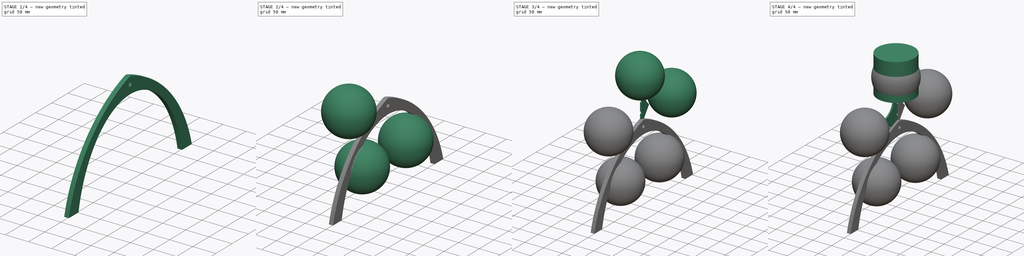
[diagram: build sequence overview — one tinted view per stage of 4, left to right]
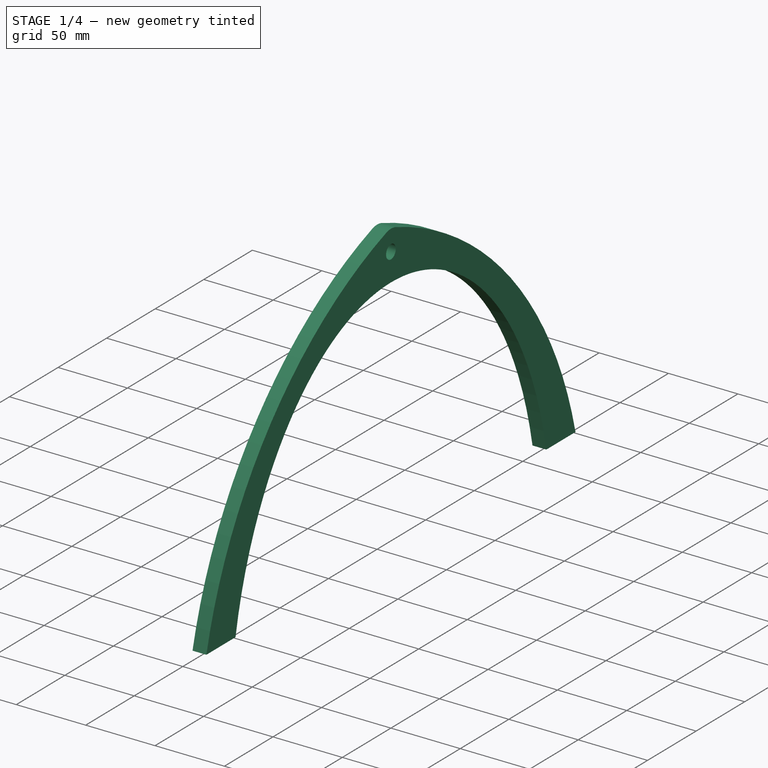
[diagram: stage 1 of 4 — iso view after this stage's code; geometry added in this stage tinted green]
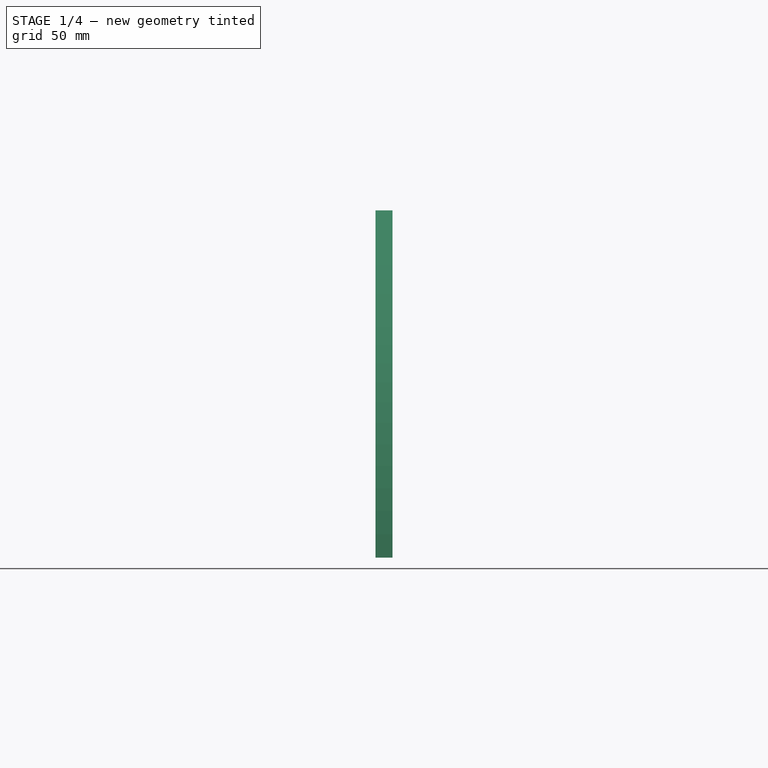
[diagram: stage 1 of 4 — front view after this stage's code; geometry added in this stage tinted green]
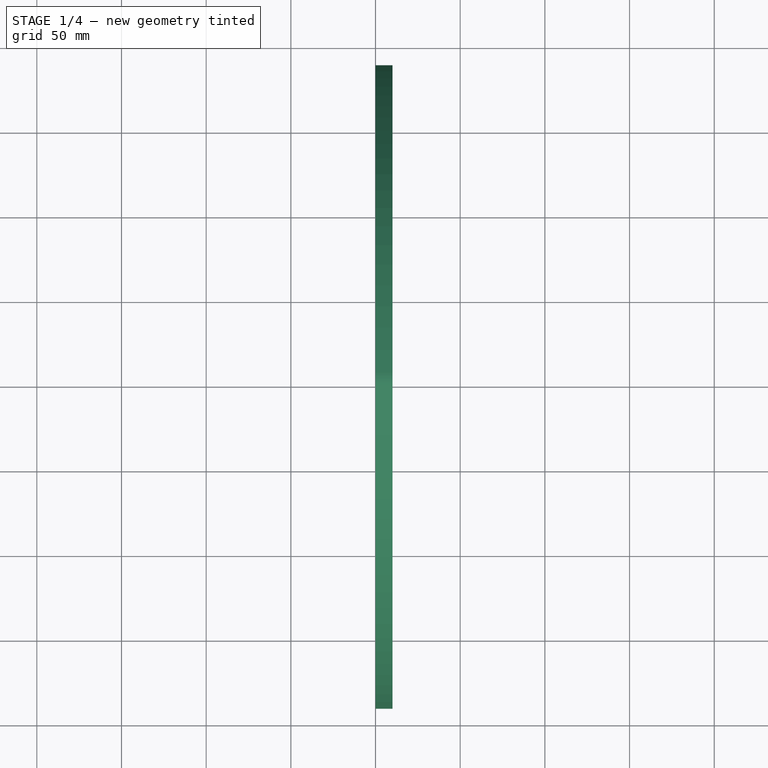
[diagram: stage 1 of 4 — top view after this stage's code; geometry added in this stage tinted green]
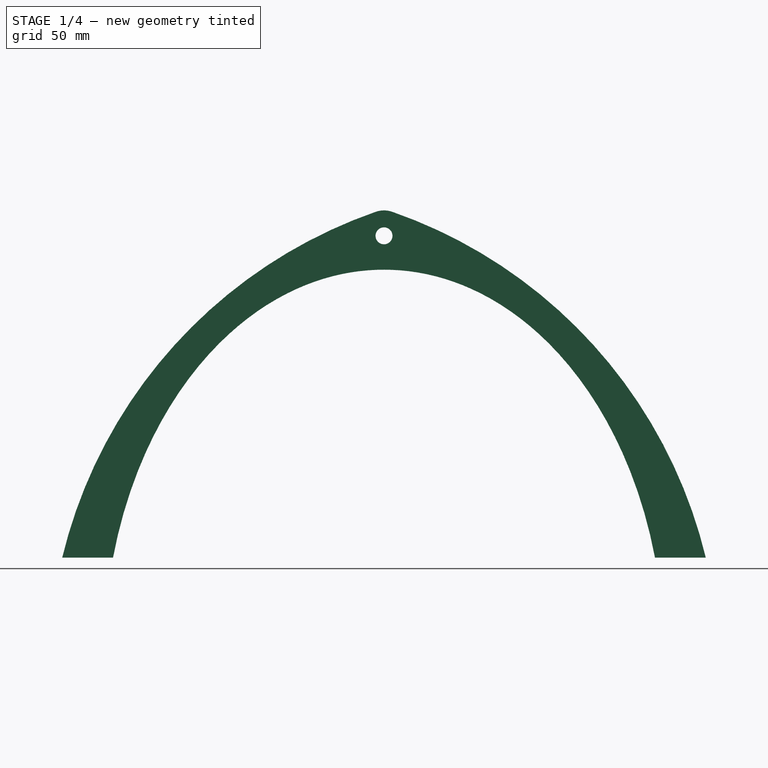
[diagram: stage 1 of 4 — right view after this stage's code; geometry added in this stage tinted green]
FCSTD DOCUMENT  (FreeCAD 0.19R24291 (Git))
Label: ferris wheel1
License: All rights reserved
LicenseURL: http://en.wikipedia.org/wiki/All_rights_reserved
objects: Part::Sphere×5, Sketcher::SketchObject×2, PartDesign::Pad×2, PartDesign::Mirrored×2, PartDesign::Body×2, Part::Cylinder×1, PartDesign::PolarPattern×1, PartDesign::MultiTransform×1
note: 18 computed .brp shape members not serialized (recipe doc carries the construction recipe); baked Part::Feature solids carry a one-line shape summary decoded from their .brp

FEATURE [PartDesign::Pad] Pad001
  Direction = (1,1,1)
  Length = 10
  Length2 = 100
  Placement = pos=(0,0,0) rot=(0.57735,0.57735,0.57735;2.0944rad)
  Profile = -> Sketch
  Type = 0
FEATURE [PartDesign::Mirrored] Mirrored001
  BaseFeature = -> Pad001
  MirrorPlane = -> Sketch [V_Axis]
  Originals = -> [Pad001]
  Placement = pos=(0,0,0) rot=(0.57735,0.57735,0.57735;2.0944rad)
FEATURE [PartDesign::Body] Body
  Group = -> [Sketch,Pad001,Mirrored001]
  Origin = -> Origin
  Placement = pos=(28,0,0) rot=(0,0,1;0rad)
  Tip = -> Mirrored001
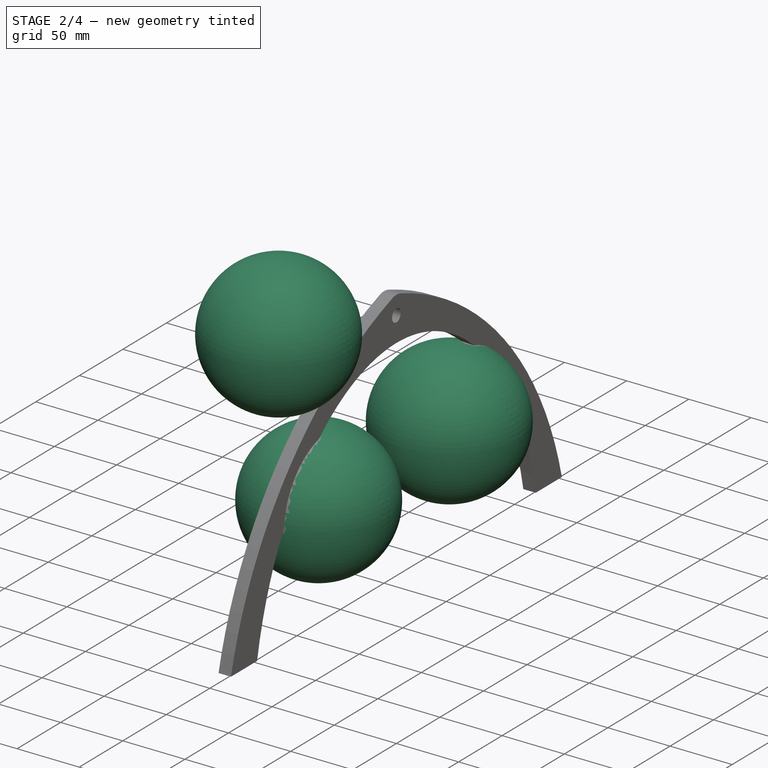
[diagram: stage 2 of 4 — iso view after this stage's code; geometry added in this stage tinted green]
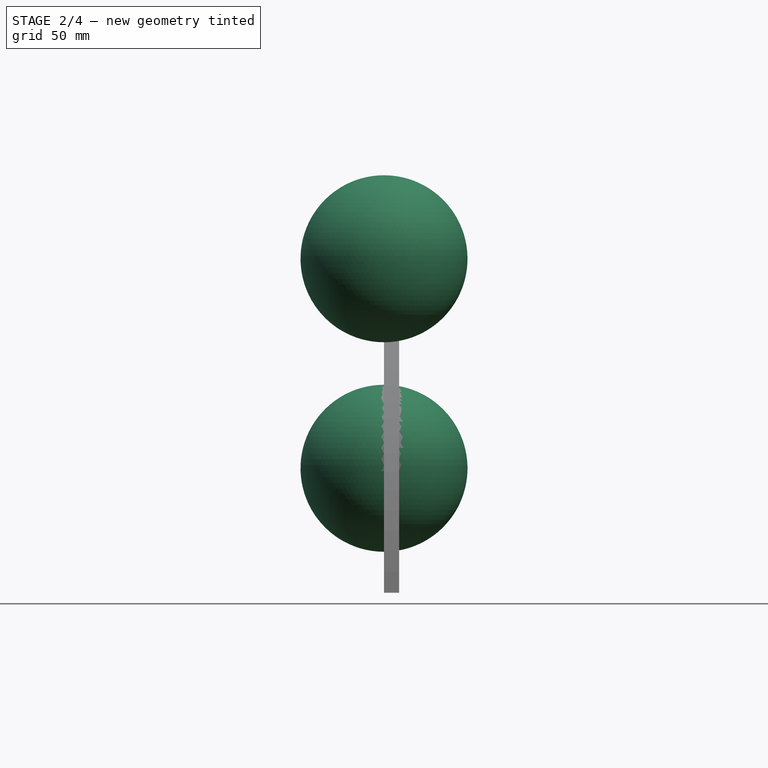
[diagram: stage 2 of 4 — front view after this stage's code; geometry added in this stage tinted green]
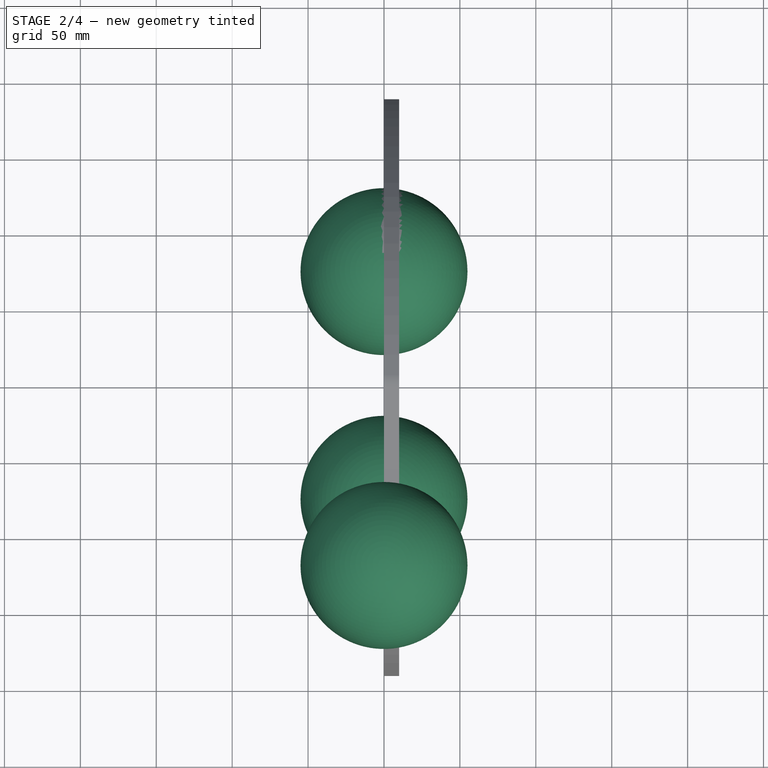
[diagram: stage 2 of 4 — top view after this stage's code; geometry added in this stage tinted green]
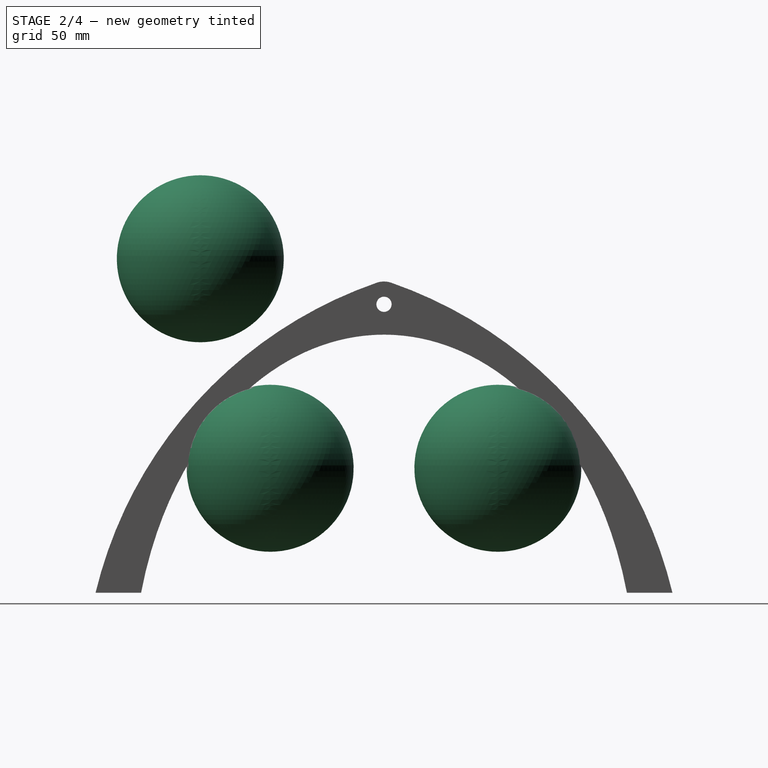
[diagram: stage 2 of 4 — right view after this stage's code; geometry added in this stage tinted green]
FEATURE [Part::Sphere] Sphere002
  Angle1 = -90
  Angle2 = 90
  Angle3 = 360
  AttacherType = Attacher::AttachEngine3D
  Placement = pos=(0,-121,30) rot=(0,0,1;0rad)
  Radius = 55
FEATURE [Part::Sphere] Sphere003
  Angle1 = -90
  Angle2 = 90
  Angle3 = 360
  AttacherType = Attacher::AttachEngine3D
  Placement = pos=(0,75,-108) rot=(0,0,1;0rad)
  Radius = 55
FEATURE [Part::Sphere] Sphere004
  Angle1 = -90
  Angle2 = 90
  Angle3 = 360
  AttacherType = Attacher::AttachEngine3D
  Placement = pos=(0,-75,-108) rot=(0,0,1;0rad)
  Radius = 55
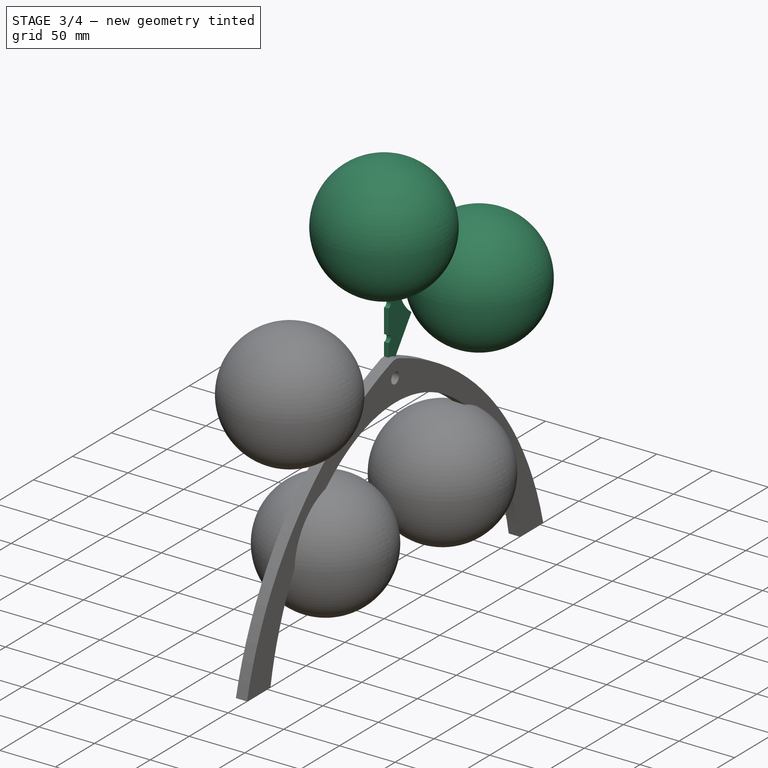
[diagram: stage 3 of 4 — iso view after this stage's code; geometry added in this stage tinted green]
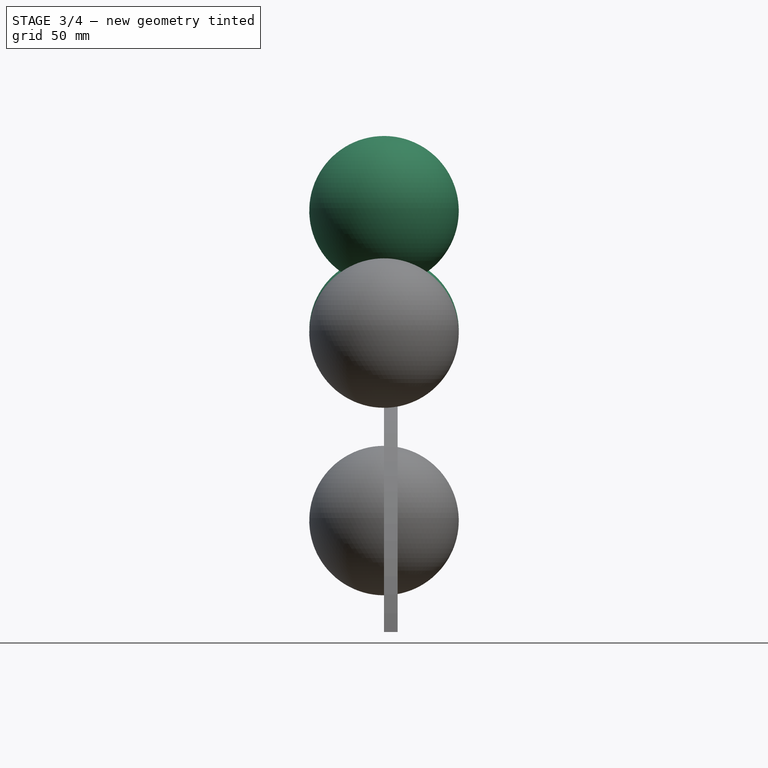
[diagram: stage 3 of 4 — front view after this stage's code; geometry added in this stage tinted green]
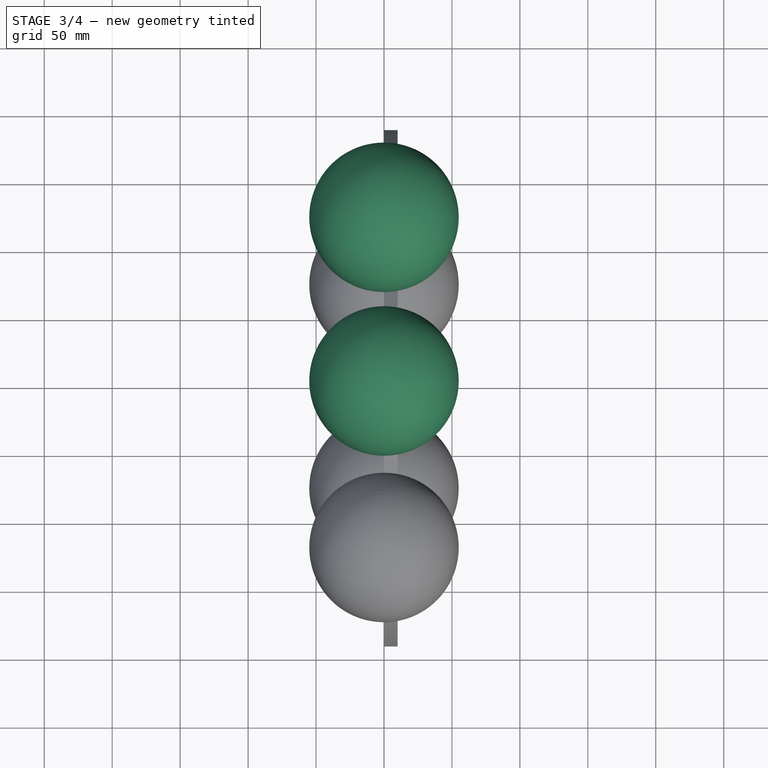
[diagram: stage 3 of 4 — top view after this stage's code; geometry added in this stage tinted green]
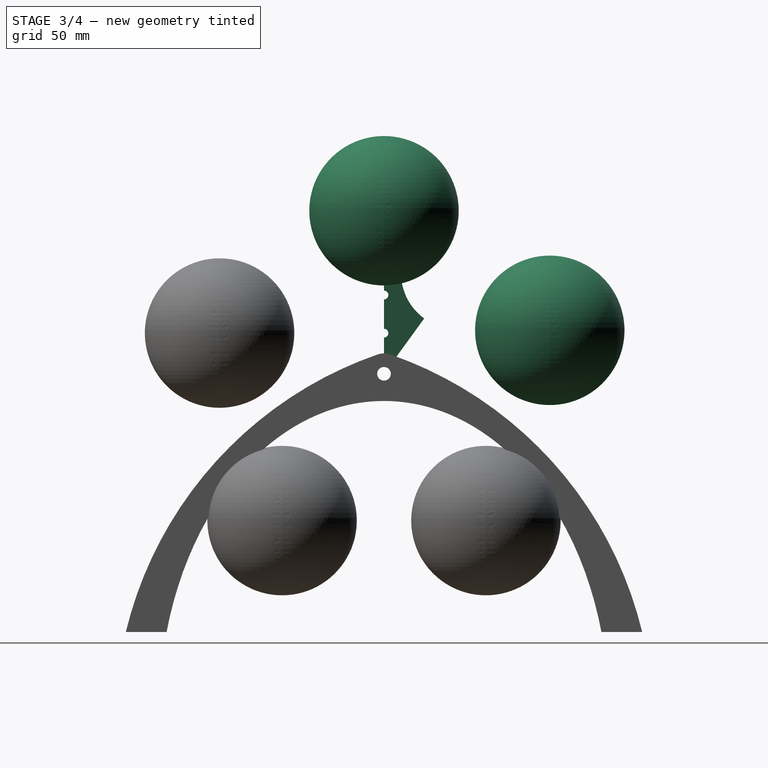
[diagram: stage 3 of 4 — right view after this stage's code; geometry added in this stage tinted green]
FEATURE [Sketcher::SketchObject] Sketch
  FullyConstrained = false
  MapMode = 5
  Placement = pos=(0,0,0) rot=(0.57735,0.57735,0.57735;2.0944rad)
  Support = -> [YZ_Plane]
  sketch-geometry (13):
    g0: ArcOfCircle CenterX=0 CenterY=0 CenterZ=0 NormalX=0 NormalY=0 NormalZ=1 AngleXU=0 Radius=5 StartAngle=4.71239 EndAngle=7.85398
    g1: ArcOfCircle CenterX=0 CenterY=0 CenterZ=0 NormalX=0 NormalY=0 NormalZ=1 AngleXU=0 Radius=15 StartAngle=1.2359 EndAngle=1.5708
    g2: LineSegment StartX=1.5e-15 StartY=15 StartZ=0 EndX=1.5e-15 EndY=5 EndZ=0
    g3: LineSegment StartX=-9e-16 StartY=-5 StartZ=0 EndX=-9e-16 EndY=-20 EndZ=0
    g4: LineSegment StartX=160 StartY=-190 StartZ=0 EndX=190 EndY=-190 EndZ=0
    g5: ArcOfCircle CenterX=-89.6084 CenterY=-257.492 CenterZ=0 NormalX=0 NormalY=0 NormalZ=1 AngleXU=0 Radius=287.639 StartAngle=0.23685 EndAngle=1.2359
    g6: GeomPoint X=160 Y=-190 Z=0
    g7: ArcOfEllipse CenterX=0 CenterY=-247.154 CenterZ=0 NormalX=0 NormalY=0 NormalZ=1 MajorRadius=227.154 MinorRadius=165.318 AngleXU=-1.5708 StartAngle=1.82514 EndAngle=3.14159
    g8: LineSegment StartX=-1.57e-14 StartY=-474.308 StartZ=0 EndX=1.57e-14 EndY=-20 EndZ=0
    g9: LineSegment StartX=165.318 StartY=-247.154 StartZ=0 EndX=-165.318 EndY=-247.154 EndZ=0
    g10: GeomPoint X=-3.46e-14 Y=-402.939 Z=0
    g11: GeomPoint X=1.07e-14 Y=-91.3697 Z=0
    g12: GeomPoint X=0 Y=-20 Z=0
  constraints (28):
    c: Coincident(g0,g-1)
    c: Coincident(g1,g0)
    c: PointOnObject(g1,g-2)
    c: Coincident(g2,g1)
    c: Vertical(g2)
    c: PointOnObject(g3,g-2)
    c: Vertical(g3)
    c: Coincident(g0,g3)
    c: Coincident(g0,g2)
    c: Horizontal(g4)
    c: Coincident(g5,g1)
    c: Coincident(g5,g4)
    c: PointOnObject(g6,g4)
    c: Diameter(g1) = 30
    c: Distance(g3,g0) = 20
    c: Distance(g4) = 30
    c: Diameter(g0) = 10
    c: DistanceX(g4) = 160
    c: DistanceY(g4) = -190
    c: InternalAlignment(g8-g11 -> g7) x4
    c: PointOnObject(g7,g-2)
    c: Coincident(g7,g4)
    c: Coincident(g7,g3)
    c: PointOnObject(g12,g7)
    c: PointOnObject(g12,g3)
    c: Perpendicular(g7,g3,g12) = 1.5708
    c: Tangent(g5,g1)
    c: Distance(g1,g1) = 5
FEATURE [Sketcher::SketchObject] Sketch001
  FullyConstrained = false
  MapMode = 5
  Placement = pos=(0,0,0) rot=(0.57735,0.57735,0.57735;2.0944rad)
  Support = -> [YZ_Plane001]
  sketch-geometry (12):
    g0: LineSegment StartX=2.93893 StartY=4.04508 StartZ=0 EndX=29.5954 EndY=40.7346 EndZ=0
    g1: LineSegment StartX=0 StartY=5 StartZ=0 EndX=0 EndY=26.7 EndZ=0
    g2: ArcOfCircle CenterX=0 CenterY=58 CenterZ=0 NormalX=0 NormalY=0 NormalZ=1 AngleXU=0 Radius=3.2 StartAngle=4.71239 EndAngle=7.85398
    g3: ArcOfCircle CenterX=0 CenterY=128 CenterZ=0 NormalX=0 NormalY=0 NormalZ=1 AngleXU=0 Radius=2.7 StartAngle=4.71239 EndAngle=7.85398
    g4: ArcOfCircle CenterX=0 CenterY=128 CenterZ=0 NormalX=0 NormalY=0 NormalZ=1 AngleXU=0 Radius=12.5 StartAngle=2.07207e-06 EndAngle=1.5708
    g5: LineSegment StartX=12.5 StartY=128 StartZ=0 EndX=12.5 EndY=74.2862 EndZ=0
    g6: ArcOfCircle CenterX=53.9721 CenterY=74.2862 CenterZ=0 NormalX=0 NormalY=0 NormalZ=1 AngleXU=0 Radius=41.4721 StartAngle=3.14159 EndAngle=4.08407
    g7: LineSegment StartX=1e-15 StartY=61.2 StartZ=0 EndX=-5e-16 EndY=125.3 EndZ=0
    g8: LineSegment StartX=8e-16 StartY=130.7 StartZ=0 EndX=0 EndY=140.5 EndZ=0
    g9: ArcOfCircle CenterX=0 CenterY=0 CenterZ=0 NormalX=0 NormalY=0 NormalZ=1 AngleXU=0 Radius=5 StartAngle=0.942478 EndAngle=1.5708
    g10: ArcOfCircle CenterX=0 CenterY=29.9 CenterZ=0 NormalX=0 NormalY=0 NormalZ=1 AngleXU=0 Radius=3.2 StartAngle=4.71239 EndAngle=7.85398
    g11: LineSegment StartX=0 StartY=33.1 StartZ=0 EndX=-6e-16 EndY=54.8 EndZ=0
  constraints (39):
    c: PointOnObject(g11,g-2)
    c: PointOnObject(g2,g-2)
    c: Coincident(g2,g11)
    c: PointOnObject(g2,g-2)
    c: PointOnObject(g3,g-2)
    c: PointOnObject(g3,g-2)
    c: PointOnObject(g3,g-2)
    c: Coincident(g4,g3)
    c: PointOnObject(g4,g-2)
    c: Coincident(g5,g4)
    c: Vertical(g5)
    c: Angle(g0,g1) = 0.628319
    c: Coincident(g6,g0)
    c: Coincident(g6,g5)
    c: Perpendicular(g6,g0)
    c: Tangent(g6,g5)
    c: Coincident(g7,g2)
    c: Coincident(g7,g3)
    c: Coincident(g8,g3)
    c: Coincident(g8,g4)
    c: Diameter(g2) = 6.4
    c: Diameter(g3) = 5.4
    c: Tangent(g5,g4)
    c: Diameter(g4) = 25
    c: Distance(g2,g3) = 70
    c: Distance(g-1,g3) = 128
    c: Coincident(g9,g-1)
    c: Diameter(g9) = 10
    c: Coincident(g0,g9)
    c: Coincident(g1,g9)
    c: PointOnObject(g1,g-2)
    c: PointOnObject(g9,g0)
    c: Diameter(g4) = 25
    c: PointOnObject(g10,g1)
    c: Equal(g10,g2)
    c: Coincident(g1,g10)
    c: Coincident(g11,g10)
    c: Tangent(g1,g11)
    c: Equal(g1,g11)
FEATURE [PartDesign::Pad] Pad
  Direction = (1,1,1)
  Length = 4
  Length2 = 100
  Placement = pos=(0,0,0) rot=(0.57735,0.57735,0.57735;2.0944rad)
  Profile = -> Sketch001
  Type = 0
FEATURE [PartDesign::Body] Body001
  Group = -> [Sketch001,Pad,MultiTransform,Mirrored,PolarPattern]
  Origin = -> Origin001
  Tip = -> MultiTransform
FEATURE [Part::Sphere] Sphere
  Angle1 = -90
  Angle2 = 90
  Angle3 = 360
  AttacherType = Attacher::AttachEngine3D
  Placement = pos=(0,0,120) rot=(0,0,1;0rad)
  Radius = 55
FEATURE [Part::Sphere] Sphere001
  Angle1 = -90
  Angle2 = 90
  Angle3 = 360
  AttacherType = Attacher::AttachEngine3D
  Placement = pos=(0,122,32) rot=(0,0,1;0rad)
  Radius = 55
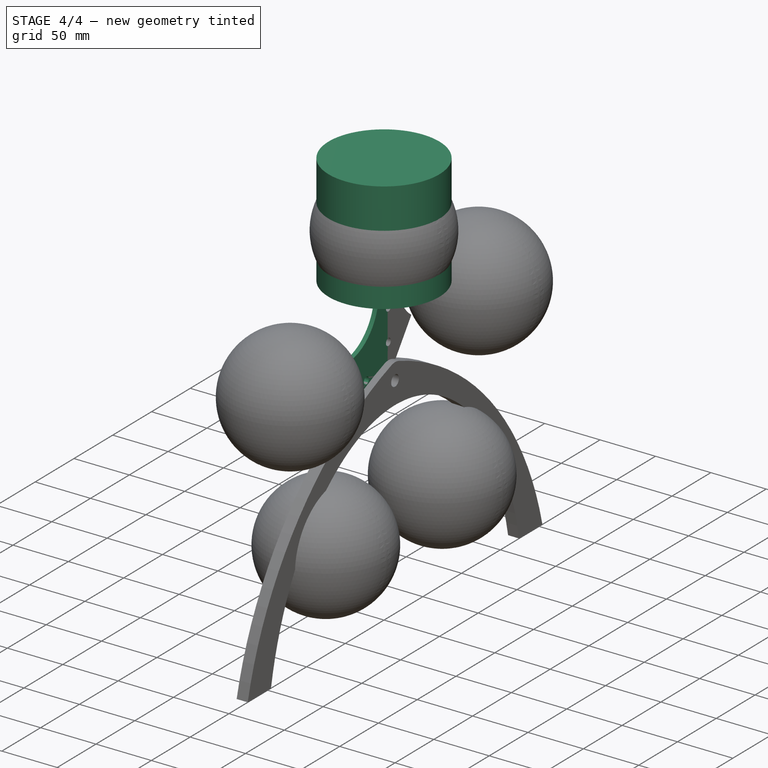
[diagram: stage 4 of 4 — iso view after this stage's code; geometry added in this stage tinted green]
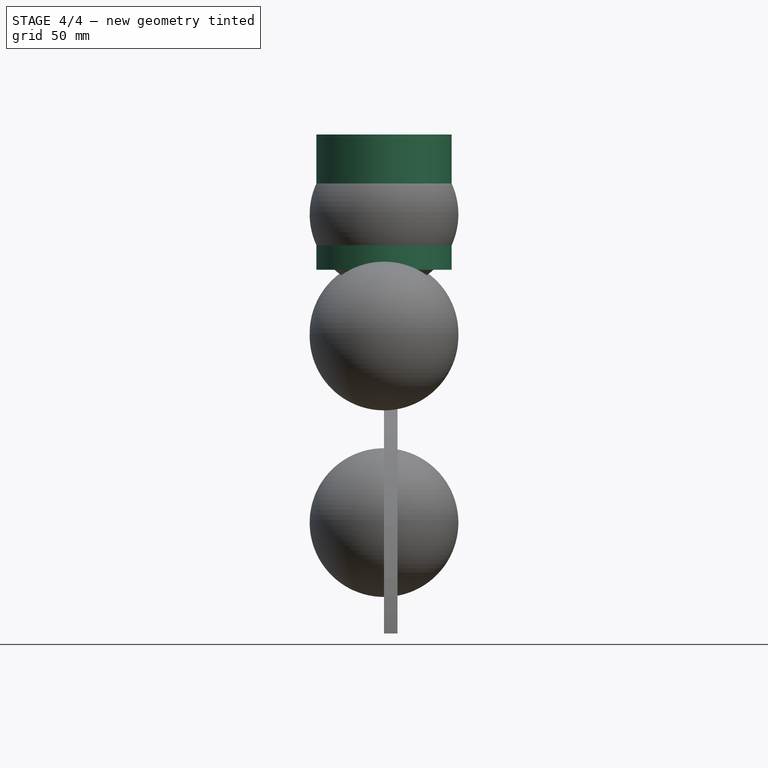
[diagram: stage 4 of 4 — front view after this stage's code; geometry added in this stage tinted green]
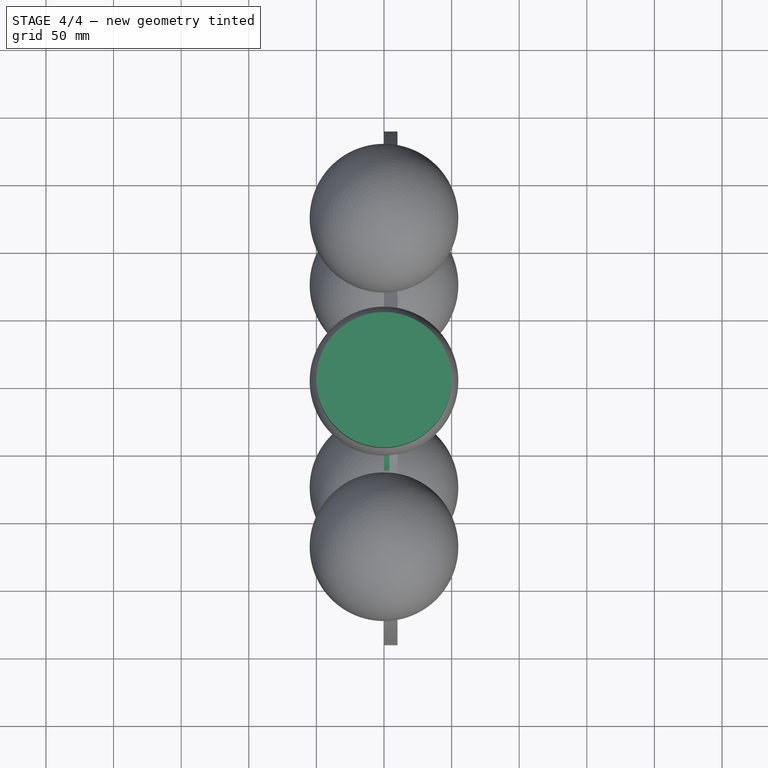
[diagram: stage 4 of 4 — top view after this stage's code; geometry added in this stage tinted green]
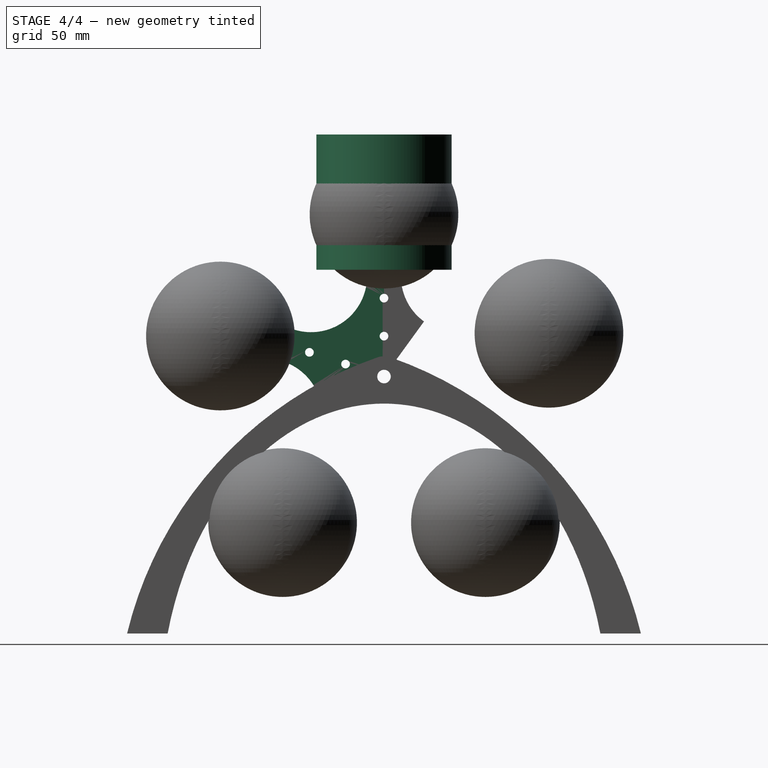
[diagram: stage 4 of 4 — right view after this stage's code; geometry added in this stage tinted green]
FEATURE [Part::Cylinder] Cylinder
  Angle = 360
  AttacherType = Attacher::AttachEngine3D
  Height = 100
  Placement = pos=(0,0,79) rot=(0,0,1;0rad)
  Radius = 50
FEATURE [PartDesign::Mirrored] Mirrored
  MirrorPlane = -> Sketch001 [V_Axis]
  Placement = pos=(0,0,0) rot=(0.57735,0.57735,0.57735;2.0944rad)
FEATURE [PartDesign::PolarPattern] PolarPattern
  Angle = 72
  Axis = -> Sketch001 [N_Axis]
  Occurrences = 2
  Placement = pos=(0,0,0) rot=(0.57735,0.57735,0.57735;2.0944rad)
FEATURE [PartDesign::MultiTransform] MultiTransform
  BaseFeature = -> Pad
  Originals = -> [Pad]
  Placement = pos=(0,0,0) rot=(0.57735,0.57735,0.57735;2.0944rad)
  Transformations = -> [Mirrored,PolarPattern]
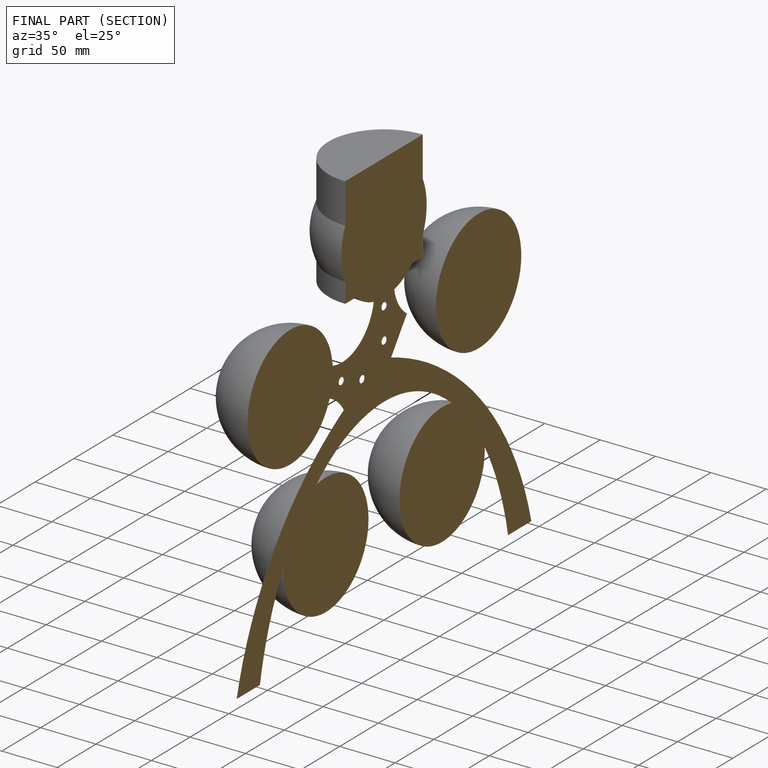
[diagram: finished part — half-section view (interior)]
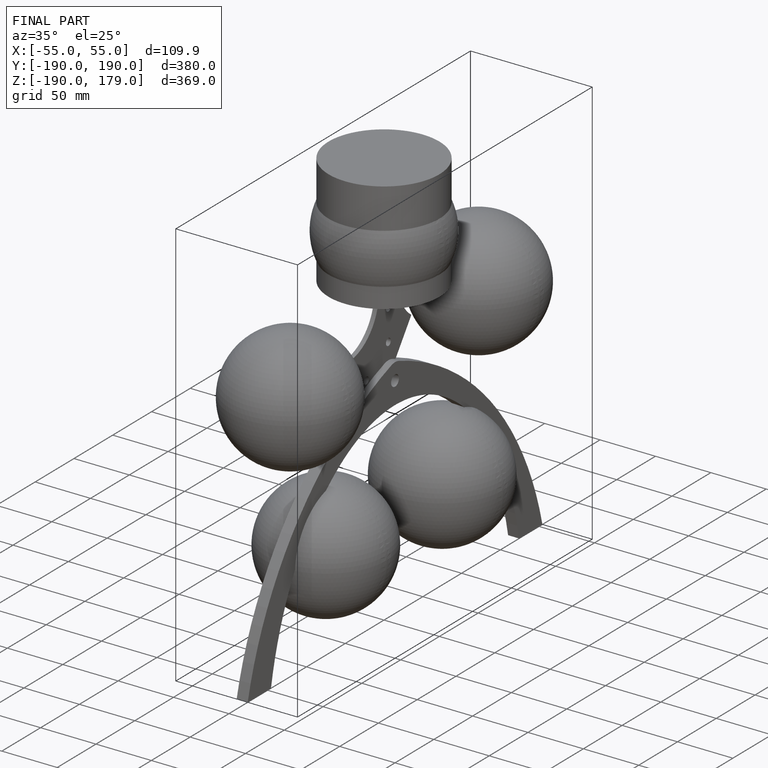
[diagram: finished part — iso view with bounding-box wireframe]
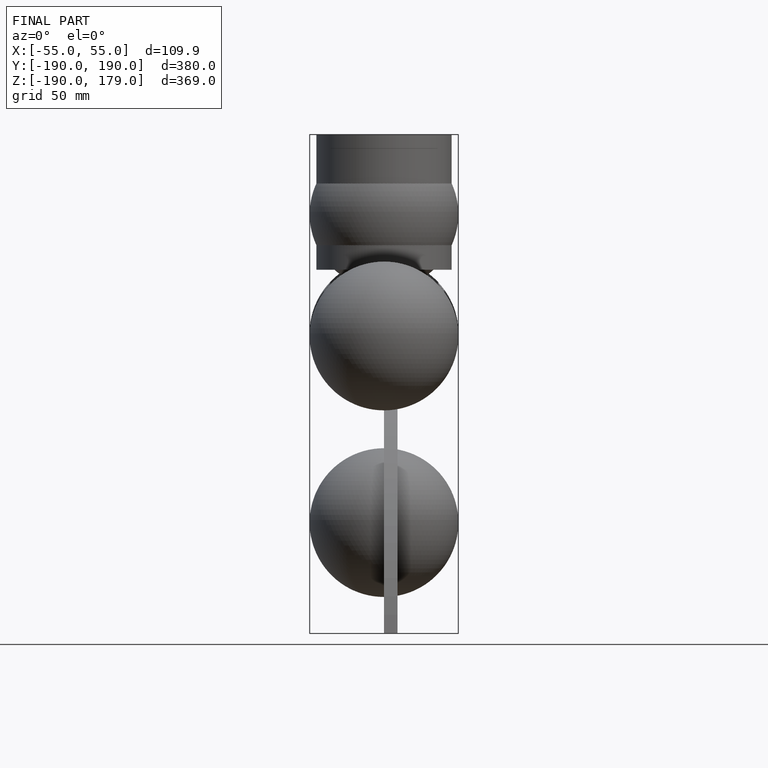
[diagram: finished part — front view with bounding-box wireframe]
